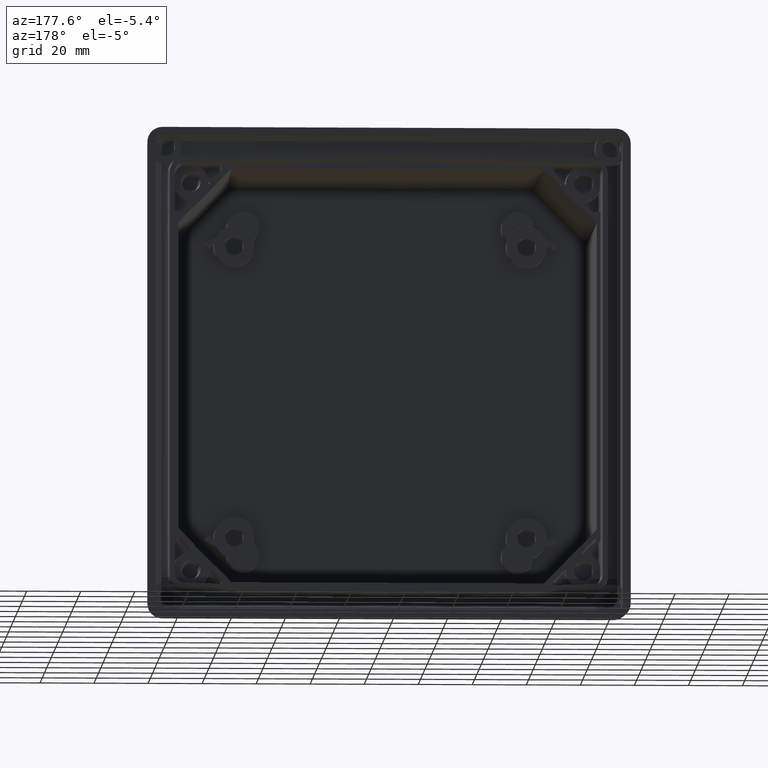
[diagram: clean part render]
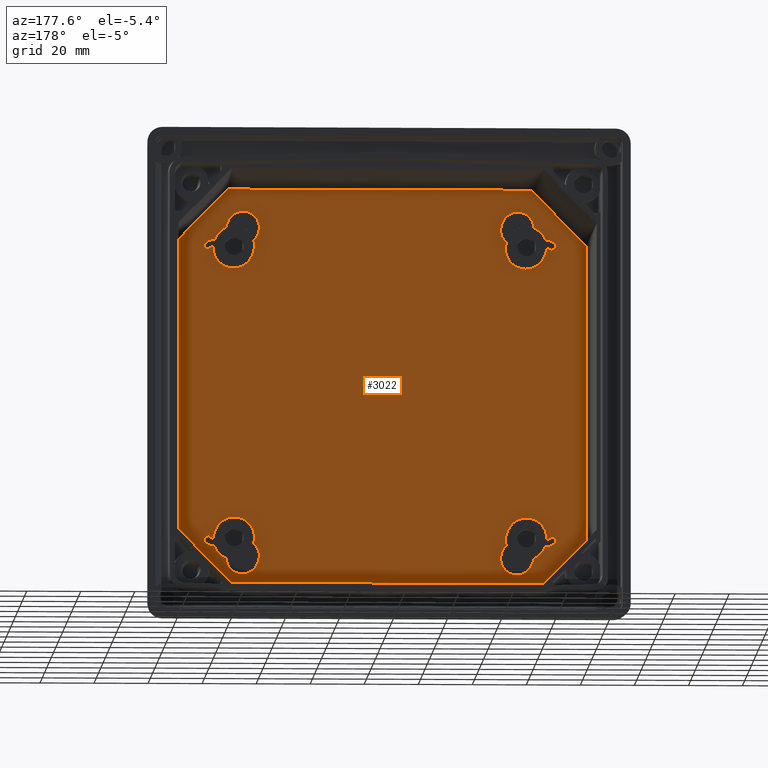
[diagram: same view with one face highlighted and labeled with its STEP entity id]
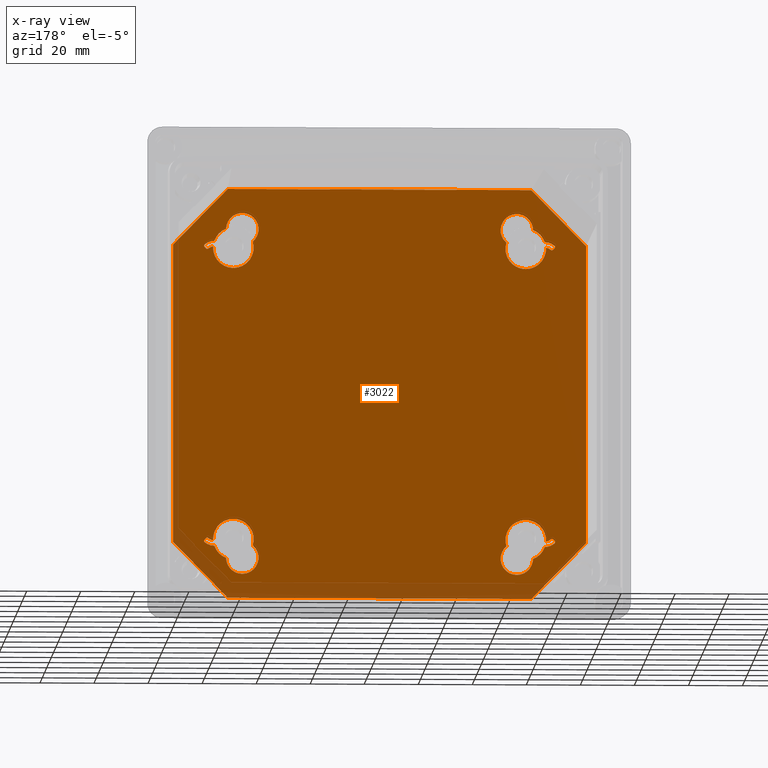
[diagram: x-ray of the same camera — body ghosted, the highlighted face saturated]
A machine part, auxiliary view. The second image highlights one B-rep face of the part: STEP entity #3022.
The next image is the same camera in x-ray: the body ghosted, the highlighted face saturated — about 5% of this face is hidden behind the body in this view.
In plain terms, the highlighted planar face has unit normal (0, -1, 0).
Its self-contained STEP definition (entity closure, byte-faithful):
#47 = VERTEX_POINT ( 'NONE', #10734 ) ;
#62 = DIRECTION ( 'NONE',  ( 0.0000000000000000000, 0.0000000000000000000, -1.000000000000000000 ) ) ;
#63 = CIRCLE ( 'NONE', #6000, 0.5000000000000073300 ) ;
#78 = VECTOR ( 'NONE', #9290, 1000.000000000000000 ) ;
#102 = EDGE_CURVE ( 'NONE', #2716, #3786, #10389, .T. ) ;
#212 = VERTEX_POINT ( 'NONE', #10812 ) ;
#215 = DIRECTION ( 'NONE',  ( 0.0000000000000000000, 0.0000000000000000000, -1.000000000000000000 ) ) ;
#251 = CARTESIAN_POINT ( 'NONE',  ( 50.79999999999999700, -84.49999999999998600, -61.00000000000000000 ) ) ;
#265 = AXIS2_PLACEMENT_3D ( 'NONE', #7161, #4368, #2992 ) ;
#306 = DIRECTION ( 'NONE',  ( -9.251858538542954100E-016, 0.0000000000000000000, -1.000000000000000000 ) ) ;
#325 = AXIS2_PLACEMENT_3D ( 'NONE', #13296, #11889, #10515 ) ;
#343 = CARTESIAN_POINT ( 'NONE',  ( 76.40815507603198900, -84.49999999999998600, -55.20772970923922400 ) ) ;
#458 = EDGE_CURVE ( 'NONE', #9845, #519, #7269, .T. ) ;
#517 = CARTESIAN_POINT ( 'NONE',  ( 63.77087436071639100, -84.49999999999998600, 53.62367472756140100 ) ) ;
#519 = VERTEX_POINT ( 'NONE', #2381 ) ;
#559 = DIRECTION ( 'NONE',  ( -0.7152683152838507100, 0.0000000000000000000, 0.6988499389361080300 ) ) ;
#560 = ORIENTED_EDGE ( 'NONE', *, *, #13187, .T. ) ;
#581 = VECTOR ( 'NONE', #9302, 1000.000000000000000 ) ;
#622 = DIRECTION ( 'NONE',  ( 0.0000000000000000000, -0.0000000000000000000, -1.000000000000000000 ) ) ;
#740 = AXIS2_PLACEMENT_3D ( 'NONE', #4469, #3093, #1694 ) ;
#741 = EDGE_CURVE ( 'NONE', #6270, #12889, #3686, .T. ) ;
#748 = VERTEX_POINT ( 'NONE', #1981 ) ;
#809 = EDGE_CURVE ( 'NONE', #5077, #3075, #3115, .T. ) ;
#817 = CARTESIAN_POINT ( 'NONE',  ( 63.77087436071639100, -84.49999999999998600, 54.12367472756140100 ) ) ;
#819 = CARTESIAN_POINT ( 'NONE',  ( 56.16765611959033300, -84.49999999999998600, -75.92675584495219700 ) ) ;
#909 = DIRECTION ( 'NONE',  ( -0.6988499389361077000, 0.0000000000000000000, 0.7152683152838510400 ) ) ;
#912 = ORIENTED_EDGE ( 'NONE', *, *, #5426, .F. ) ;
#982 = DIRECTION ( 'NONE',  ( 0.0000000000000000000, 0.0000000000000000000, -1.000000000000000000 ) ) ;
#1011 = CARTESIAN_POINT ( 'NONE',  ( 54.10000000000001600, -84.49999999999998600, -54.09999999999998700 ) ) ;
#1150 = ORIENTED_EDGE ( 'NONE', *, *, #11605, .F. ) ;
#1191 = AXIS2_PLACEMENT_3D ( 'NONE', #9619, #8241, #6839 ) ;
#1194 = DIRECTION ( 'NONE',  ( 0.0000000000000000000, 0.0000000000000000000, 1.000000000000000000 ) ) ;
#1233 = CIRCLE ( 'NONE', #13057, 3.999999999999996400 ) ;
#1339 = DIRECTION ( 'NONE',  ( 0.0000000000000000000, 1.000000000000000000, 0.0000000000000000000 ) ) ;
#1345 = ORIENTED_EDGE ( 'NONE', *, *, #12081, .T. ) ;
#1369 = CIRCLE ( 'NONE', #12923, 0.5000000000000004400 ) ;
#1437 = DIRECTION ( 'NONE',  ( -0.0000000000000000000, 1.000000000000000000, -0.0000000000000000000 ) ) ;
#1455 = AXIS2_PLACEMENT_3D ( 'NONE', #3102, #1699, #306 ) ;
#1502 = VERTEX_POINT ( 'NONE', #12107 ) ;
#1534 = CIRCLE ( 'NONE', #7531, 7.500000000000013300 ) ;
#1587 = ORIENTED_EDGE ( 'NONE', *, *, #13308, .T. ) ;
#1600 = DIRECTION ( 'NONE',  ( -0.0000000000000000000, 1.000000000000000000, -0.0000000000000000000 ) ) ;
#1613 = VERTEX_POINT ( 'NONE', #3851 ) ;
#1657 = DIRECTION ( 'NONE',  ( 0.0000000000000000000, 0.0000000000000000000, 1.000000000000000000 ) ) ;
#1694 = DIRECTION ( 'NONE',  ( 0.0000000000000000000, 0.0000000000000000000, -1.000000000000000000 ) ) ;
#1699 = DIRECTION ( 'NONE',  ( -0.0000000000000000000, 1.000000000000000000, -0.0000000000000000000 ) ) ;
#1704 = EDGE_CURVE ( 'NONE', #9067, #6270, #2200, .T. ) ;
#1733 = AXIS2_PLACEMENT_3D ( 'NONE', #3558, #10198, #8793 ) ;
#1741 = LINE ( 'NONE', #343, #5977 ) ;
#1795 = EDGE_CURVE ( 'NONE', #5226, #2406, #63, .T. ) ;
#1803 = AXIS2_PLACEMENT_3D ( 'NONE', #3410, #2031, #622 ) ;
#1808 = ORIENTED_EDGE ( 'NONE', *, *, #9238, .T. ) ;
#1825 = CARTESIAN_POINT ( 'NONE',  ( 46.95848369606154900, -84.49999999999998600, -56.39101394159462200 ) ) ;
#1849 = CARTESIAN_POINT ( 'NONE',  ( 76.40616714469128100, -84.49999999999998600, -55.20976434388931200 ) ) ;
#1954 = AXIS2_PLACEMENT_3D ( 'NONE', #251, #8281, #6878 ) ;
#1971 = CARTESIAN_POINT ( 'NONE',  ( -64.12029933018443700, -84.49999999999998600, 53.76604056991948300 ) ) ;
#1973 = DIRECTION ( 'NONE',  ( 0.0000000000000000000, 0.0000000000000000000, -1.000000000000000000 ) ) ;
#1981 = CARTESIAN_POINT ( 'NONE',  ( 56.16471657839286300, -84.49999999999998600, 75.92675584495218300 ) ) ;
#2016 = ORIENTED_EDGE ( 'NONE', *, *, #11937, .T. ) ;
#2031 = DIRECTION ( 'NONE',  ( 0.0000000000000000000, -1.000000000000000000, 0.0000000000000000000 ) ) ;
#2083 = EDGE_LOOP ( 'NONE', ( #10978, #1808, #1587, #8238, #2910, #9764, #9655, #5403 ) ) ;
#2091 = CARTESIAN_POINT ( 'NONE',  ( -56.16471657839283400, -84.49999999999998600, 75.92675584495219700 ) ) ;
#2115 = ORIENTED_EDGE ( 'NONE', *, *, #10953, .T. ) ;
#2147 = CARTESIAN_POINT ( 'NONE',  ( 61.15823028863208300, -84.49999999999998600, 56.63601758523807900 ) ) ;
#2200 = LINE ( 'NONE', #819, #9749 ) ;
#2288 = CARTESIAN_POINT ( 'NONE',  ( -56.16266228020645500, -84.49999999999998600, -75.92885840563222600 ) ) ;
#2305 = CARTESIAN_POINT ( 'NONE',  ( -46.95848369606150600, -84.49999999999998600, 56.39101394159465000 ) ) ;
#2359 = DIRECTION ( 'NONE',  ( 0.0000000000000000000, 1.000000000000000000, 0.0000000000000000000 ) ) ;
#2381 = CARTESIAN_POINT ( 'NONE',  ( 61.58427589301216900, -84.49999999999998600, -54.58540123328757700 ) ) ;
#2391 = VERTEX_POINT ( 'NONE', #11034 ) ;
#2406 = VERTEX_POINT ( 'NONE', #12429 ) ;
#2431 = CIRCLE ( 'NONE', #1191, 3.999999999999996400 ) ;
#2489 = ORIENTED_EDGE ( 'NONE', *, *, #11309, .F. ) ;
#2492 = EDGE_CURVE ( 'NONE', #9063, #5077, #7426, .T. ) ;
#2518 = CARTESIAN_POINT ( 'NONE',  ( -60.92152217993155700, -84.49999999999998600, -50.64068863085405100 ) ) ;
#2533 = DIRECTION ( 'NONE',  ( 0.7152683152838507100, 0.0000000000000000000, -0.6988499389361080300 ) ) ;
#2552 = DIRECTION ( 'NONE',  ( 0.0000000000000000000, 0.0000000000000000000, -1.000000000000000000 ) ) ;
#2584 = DIRECTION ( 'NONE',  ( -0.0000000000000000000, -1.000000000000000000, -0.0000000000000000000 ) ) ;
#2601 = VERTEX_POINT ( 'NONE', #6696 ) ;
#2619 = EDGE_CURVE ( 'NONE', #3615, #3391, #8484, .T. ) ;
#2637 = ORIENTED_EDGE ( 'NONE', *, *, #8834, .F. ) ;
#2647 = CARTESIAN_POINT ( 'NONE',  ( -64.83920808942838200, -84.49999999999998600, -54.46844738951820400 ) ) ;
#2716 = VERTEX_POINT ( 'NONE', #9958 ) ;
#2733 = CARTESIAN_POINT ( 'NONE',  ( -60.92152217993155700, -84.49999999999998600, 50.64068863085405100 ) ) ;
#2831 = CARTESIAN_POINT ( 'NONE',  ( 54.10000000000001600, -84.49999999999998600, -54.09999999999998700 ) ) ;
#2854 = CARTESIAN_POINT ( 'NONE',  ( -76.40616714469119600, -84.49999999999998600, -55.20976434388941100 ) ) ;
#2910 = ORIENTED_EDGE ( 'NONE', *, *, #7540, .T. ) ;
#2992 = DIRECTION ( 'NONE',  ( 0.0000000000000000000, 0.0000000000000000000, -1.000000000000000000 ) ) ;
#3009 = CARTESIAN_POINT ( 'NONE',  ( -54.09999999999998700, -84.49999999999998600, -54.10000000000000100 ) ) ;
#3022 = ADVANCED_FACE ( 'NONE', ( #13270, #3202, #3544, #4253, #4595 ), #4801, .F. ) ;
#3041 = EDGE_CURVE ( 'NONE', #5493, #10763, #7493, .T. ) ;
#3062 = DIRECTION ( 'NONE',  ( 0.0000000000000000000, 1.000000000000000000, 0.0000000000000000000 ) ) ;
#3075 = VERTEX_POINT ( 'NONE', #10760 ) ;
#3093 = DIRECTION ( 'NONE',  ( -0.0000000000000000000, 1.000000000000000000, -0.0000000000000000000 ) ) ;
#3102 = CARTESIAN_POINT ( 'NONE',  ( -54.09999999999998700, -84.49999999999998600, 54.10000000000000100 ) ) ;
#3115 = CIRCLE ( 'NONE', #11999, 0.5000000000000004400 ) ;
#3118 = DIRECTION ( 'NONE',  ( 0.0000000000000000000, 0.0000000000000000000, -1.000000000000000000 ) ) ;
#3140 = ORIENTED_EDGE ( 'NONE', *, *, #2492, .T. ) ;
#3202 = FACE_BOUND ( 'NONE', #11217, .T. ) ;
#3254 = EDGE_LOOP ( 'NONE', ( #8721, #6759, #2489, #2016, #13225, #912, #11823, #1345, #4926, #9014 ) ) ;
#3351 = LINE ( 'NONE', #1971, #13144 ) ;
#3354 = DIRECTION ( 'NONE',  ( -0.0000000000000000000, -1.000000000000000000, -0.0000000000000000000 ) ) ;
#3377 = ORIENTED_EDGE ( 'NONE', *, *, #2619, .T. ) ;
#3387 = CARTESIAN_POINT ( 'NONE',  ( 64.83920808942838200, -84.49999999999998600, -54.46844738951819700 ) ) ;
#3391 = VERTEX_POINT ( 'NONE', #13380 ) ;
#3410 = CARTESIAN_POINT ( 'NONE',  ( -130.3583993162143900, -84.49999999999998600, -2.775557561562891400E-014 ) ) ;
#3438 = ORIENTED_EDGE ( 'NONE', *, *, #4852, .F. ) ;
#3514 = VERTEX_POINT ( 'NONE', #13459 ) ;
#3517 = EDGE_CURVE ( 'NONE', #6258, #2601, #7523, .T. ) ;
#3544 = FACE_OUTER_BOUND ( 'NONE', #2083, .T. ) ;
#3558 = CARTESIAN_POINT ( 'NONE',  ( 54.10000000000001600, -84.49999999999998600, 54.09999999999998700 ) ) ;
#3615 = VERTEX_POINT ( 'NONE', #9368 ) ;
#3630 = ORIENTED_EDGE ( 'NONE', *, *, #9964, .T. ) ;
#3661 = EDGE_CURVE ( 'NONE', #2406, #11258, #4401, .T. ) ;
#3686 = LINE ( 'NONE', #2288, #5362 ) ;
#3726 = VERTEX_POINT ( 'NONE', #3963 ) ;
#3759 = CARTESIAN_POINT ( 'NONE',  ( -64.48978311996030800, -84.49999999999998600, 54.82608154716012900 ) ) ;
#3780 = AXIS2_PLACEMENT_3D ( 'NONE', #9270, #7863, #6481 ) ;
#3786 = VERTEX_POINT ( 'NONE', #7628 ) ;
#3804 = CARTESIAN_POINT ( 'NONE',  ( 54.10000000000001600, -84.49999999999998600, -46.59999999999998700 ) ) ;
#3851 = CARTESIAN_POINT ( 'NONE',  ( -54.09999999999998700, -84.49999999999998600, -46.59999999999998700 ) ) ;
#3894 = VERTEX_POINT ( 'NONE', #5337 ) ;
#3934 = CARTESIAN_POINT ( 'NONE',  ( 64.12029933018443700, -84.49999999999998600, -53.76604056991948300 ) ) ;
#3957 = DIRECTION ( 'NONE',  ( -0.0000000000000000000, 1.000000000000000000, -0.0000000000000000000 ) ) ;
#3963 = CARTESIAN_POINT ( 'NONE',  ( 64.12029933018445100, -84.49999999999998600, -53.76604056991949000 ) ) ;
#3990 = CARTESIAN_POINT ( 'NONE',  ( -50.79999999999999700, -84.49999999999998600, -61.00000000000000000 ) ) ;
#4023 = CARTESIAN_POINT ( 'NONE',  ( 76.40616714469128100, -84.49999999999998600, 55.20976434388931200 ) ) ;
#4060 = ORIENTED_EDGE ( 'NONE', *, *, #13316, .F. ) ;
#4112 = DIRECTION ( 'NONE',  ( 0.0000000000000000000, 0.0000000000000000000, -1.000000000000000000 ) ) ;
#4120 = CARTESIAN_POINT ( 'NONE',  ( -63.45427967396251000, -84.49999999999998600, 53.73667627237169600 ) ) ;
#4162 = VERTEX_POINT ( 'NONE', #4023 ) ;
#4222 = DIRECTION ( 'NONE',  ( 0.0000000000000000000, 0.0000000000000000000, 1.000000000000000000 ) ) ;
#4234 = DIRECTION ( 'NONE',  ( 0.6988499389361071400, 0.0000000000000000000, -0.7152683152838516000 ) ) ;
#4253 = FACE_BOUND ( 'NONE', #6737, .T. ) ;
#4368 = DIRECTION ( 'NONE',  ( -0.0000000000000000000, 1.000000000000000000, 0.0000000000000000000 ) ) ;
#4392 = AXIS2_PLACEMENT_3D ( 'NONE', #817, #12991, #11597 ) ;
#4401 = CIRCLE ( 'NONE', #6533, 6.000000000000005300 ) ;
#4439 = CARTESIAN_POINT ( 'NONE',  ( 64.48978311996030800, -84.49999999999998600, -54.82608154716012900 ) ) ;
#4457 = CIRCLE ( 'NONE', #4746, 7.500000000000013300 ) ;
#4469 = CARTESIAN_POINT ( 'NONE',  ( 54.10000000000001600, -84.49999999999998600, 54.09999999999998700 ) ) ;
#4494 = DIRECTION ( 'NONE',  ( 0.0000000000000000000, 1.000000000000000000, -0.0000000000000000000 ) ) ;
#4561 = CIRCLE ( 'NONE', #1733, 7.500000000000000000 ) ;
#4592 = CIRCLE ( 'NONE', #6904, 6.000000000000005300 ) ;
#4595 = FACE_BOUND ( 'NONE', #7274, .T. ) ;
#4602 = ORIENTED_EDGE ( 'NONE', *, *, #10315, .F. ) ;
#4738 = CARTESIAN_POINT ( 'NONE',  ( 64.48978311996030800, -84.49999999999998600, 54.82608154716012900 ) ) ;
#4746 = AXIS2_PLACEMENT_3D ( 'NONE', #10869, #9490, #8104 ) ;
#4770 = ORIENTED_EDGE ( 'NONE', *, *, #8481, .F. ) ;
#4783 = EDGE_CURVE ( 'NONE', #1613, #6740, #5528, .T. ) ;
#4801 = PLANE ( 'NONE',  #1803 ) ;
#4834 = CIRCLE ( 'NONE', #4392, 0.5000000000000004400 ) ;
#4852 = EDGE_CURVE ( 'NONE', #8847, #11495, #10768, .T. ) ;
#4926 = ORIENTED_EDGE ( 'NONE', *, *, #3517, .T. ) ;
#4936 = ORIENTED_EDGE ( 'NONE', *, *, #9825, .F. ) ;
#5070 = EDGE_CURVE ( 'NONE', #7757, #6099, #12065, .T. ) ;
#5077 = VERTEX_POINT ( 'NONE', #6516 ) ;
#5165 = CARTESIAN_POINT ( 'NONE',  ( -63.77087436071639100, -84.49999999999998600, -54.12367472756140100 ) ) ;
#5172 = CARTESIAN_POINT ( 'NONE',  ( 63.45427967396251000, -84.49999999999998600, -53.73667627237169600 ) ) ;
#5180 = ORIENTED_EDGE ( 'NONE', *, *, #458, .F. ) ;
#5226 = VERTEX_POINT ( 'NONE', #7338 ) ;
#5322 = LINE ( 'NONE', #3934, #6166 ) ;
#5326 = VECTOR ( 'NONE', #10373, 1000.000000000000000 ) ;
#5337 = CARTESIAN_POINT ( 'NONE',  ( 64.81417047814474600, -84.49999999999998600, -55.20657181227887400 ) ) ;
#5339 = CARTESIAN_POINT ( 'NONE',  ( 54.10000000000001600, -84.49999999999998600, 54.09999999999998700 ) ) ;
#5362 = VECTOR ( 'NONE', #909, 1000.000000000000000 ) ;
#5390 = EDGE_CURVE ( 'NONE', #10044, #2391, #11855, .T. ) ;
#5403 = ORIENTED_EDGE ( 'NONE', *, *, #5636, .T. ) ;
#5419 = CARTESIAN_POINT ( 'NONE',  ( -61.58427589301215500, -84.49999999999998600, 54.58540123328757700 ) ) ;
#5426 = EDGE_CURVE ( 'NONE', #212, #5493, #4561, .T. ) ;
#5486 = DIRECTION ( 'NONE',  ( -0.0000000000000000000, 1.000000000000000000, -0.0000000000000000000 ) ) ;
#5493 = VERTEX_POINT ( 'NONE', #6742 ) ;
#5515 = AXIS2_PLACEMENT_3D ( 'NONE', #5339, #3957, #2552 ) ;
#5528 = CIRCLE ( 'NONE', #12582, 7.500000000000013300 ) ;
#5576 = AXIS2_PLACEMENT_3D ( 'NONE', #10665, #9289, #7884 ) ;
#5587 = VECTOR ( 'NONE', #8528, 1000.000000000000100 ) ;
#5597 = DIRECTION ( 'NONE',  ( 0.0000000000000000000, 1.000000000000000000, 0.0000000000000000000 ) ) ;
#5605 = CARTESIAN_POINT ( 'NONE',  ( 56.16266228020649000, -84.49999999999998600, 75.92885840563221200 ) ) ;
#5636 = EDGE_CURVE ( 'NONE', #12889, #7757, #12048, .T. ) ;
#5661 = AXIS2_PLACEMENT_3D ( 'NONE', #8969, #7579, #6203 ) ;
#5754 = CIRCLE ( 'NONE', #11211, 6.000000000000005300 ) ;
#5915 = VERTEX_POINT ( 'NONE', #5419 ) ;
#5977 = VECTOR ( 'NONE', #12531, 1000.000000000000000 ) ;
#5988 = EDGE_CURVE ( 'NONE', #3514, #3391, #12645, .T. ) ;
#6000 = AXIS2_PLACEMENT_3D ( 'NONE', #4738, #3354, #1973 ) ;
#6037 = EDGE_CURVE ( 'NONE', #4162, #6182, #10023, .T. ) ;
#6099 = VERTEX_POINT ( 'NONE', #2091 ) ;
#6166 = VECTOR ( 'NONE', #2533, 1000.000000000000100 ) ;
#6182 = VERTEX_POINT ( 'NONE', #1849 ) ;
#6203 = DIRECTION ( 'NONE',  ( 0.0000000000000000000, 0.0000000000000000000, 1.000000000000000000 ) ) ;
#6257 = AXIS2_PLACEMENT_3D ( 'NONE', #3759, #2359, #982 ) ;
#6258 = VERTEX_POINT ( 'NONE', #517 ) ;
#6270 = VERTEX_POINT ( 'NONE', #12701 ) ;
#6315 = EDGE_CURVE ( 'NONE', #12295, #3726, #6410, .T. ) ;
#6341 = DIRECTION ( 'NONE',  ( 0.0000000000000000000, 0.0000000000000000000, 1.000000000000000000 ) ) ;
#6410 = CIRCLE ( 'NONE', #265, 0.5000000000000004400 ) ;
#6452 = VERTEX_POINT ( 'NONE', #3387 ) ;
#6470 = DIRECTION ( 'NONE',  ( 0.0000000000000000000, 0.0000000000000000000, -1.000000000000000000 ) ) ;
#6481 = DIRECTION ( 'NONE',  ( 0.0000000000000000000, 0.0000000000000000000, -1.000000000000000000 ) ) ;
#6516 = CARTESIAN_POINT ( 'NONE',  ( -63.45427967396251000, -84.49999999999998600, -53.73667627237169600 ) ) ;
#6533 = AXIS2_PLACEMENT_3D ( 'NONE', #10505, #9119, #7718 ) ;
#6539 = ORIENTED_EDGE ( 'NONE', *, *, #12160, .F. ) ;
#6549 = EDGE_CURVE ( 'NONE', #3514, #47, #12677, .T. ) ;
#6563 = CARTESIAN_POINT ( 'NONE',  ( -64.12029933018443700, -84.49999999999998600, 53.76604056991947500 ) ) ;
#6696 = CARTESIAN_POINT ( 'NONE',  ( 64.12029933018443700, -84.49999999999998600, 53.76604056991947500 ) ) ;
#6737 = EDGE_LOOP ( 'NONE', ( #1150, #12197, #9627, #13389, #2637, #5180, #4060, #10349, #11356, #13488 ) ) ;
#6740 = VERTEX_POINT ( 'NONE', #6925 ) ;
#6742 = CARTESIAN_POINT ( 'NONE',  ( 54.10000000000001600, -84.49999999999998600, 46.59999999999998700 ) ) ;
#6759 = ORIENTED_EDGE ( 'NONE', *, *, #3661, .T. ) ;
#6828 = DIRECTION ( 'NONE',  ( 0.0000000000000000000, 0.0000000000000000000, 1.000000000000000000 ) ) ;
#6839 = DIRECTION ( 'NONE',  ( 0.0000000000000000000, 0.0000000000000000000, -1.000000000000000000 ) ) ;
#6878 = DIRECTION ( 'NONE',  ( 0.0000000000000000000, 0.0000000000000000000, 1.000000000000000000 ) ) ;
#6883 = CARTESIAN_POINT ( 'NONE',  ( -54.09999999999998700, -84.49999999999998600, -54.10000000000000100 ) ) ;
#6888 = CIRCLE ( 'NONE', #1954, 6.000000000000005300 ) ;
#6904 = AXIS2_PLACEMENT_3D ( 'NONE', #2733, #1339, #13537 ) ;
#6925 = CARTESIAN_POINT ( 'NONE',  ( -46.95848369606150600, -84.49999999999998600, -56.39101394159465000 ) ) ;
#6955 = AXIS2_PLACEMENT_3D ( 'NONE', #2518, #13320, #11920 ) ;
#6975 = CARTESIAN_POINT ( 'NONE',  ( 63.45427967396251000, -84.49999999999998600, 53.73667627237169600 ) ) ;
#6987 = EDGE_CURVE ( 'NONE', #212, #7547, #1233, .T. ) ;
#6992 = ORIENTED_EDGE ( 'NONE', *, *, #7912, .F. ) ;
#7001 = CARTESIAN_POINT ( 'NONE',  ( -63.77087436071639100, -84.49999999999998600, 54.12367472756140100 ) ) ;
#7011 = LINE ( 'NONE', #5605, #7389 ) ;
#7065 = DIRECTION ( 'NONE',  ( 0.0000000000000000000, 0.0000000000000000000, -1.000000000000000000 ) ) ;
#7161 = CARTESIAN_POINT ( 'NONE',  ( 63.77087436071639100, -84.49999999999998600, -54.12367472756140100 ) ) ;
#7255 = DIRECTION ( 'NONE',  ( 0.0000000000000000000, 0.0000000000000000000, -1.000000000000000000 ) ) ;
#7269 = CIRCLE ( 'NONE', #3780, 7.500000000000000000 ) ;
#7274 = EDGE_LOOP ( 'NONE', ( #4936, #10193, #6539, #10533, #4770, #7762, #6992, #13149, #8787, #3438 ) ) ;
#7292 = CARTESIAN_POINT ( 'NONE',  ( -60.92152217993155700, -84.49999999999998600, -50.64068863085405100 ) ) ;
#7338 = CARTESIAN_POINT ( 'NONE',  ( 64.83920808942839600, -84.49999999999998600, 54.46844738951822500 ) ) ;
#7375 = CARTESIAN_POINT ( 'NONE',  ( 50.79999999999999700, -84.49999999999998600, -67.00000000000000000 ) ) ;
#7389 = VECTOR ( 'NONE', #4234, 1000.000000000000000 ) ;
#7426 = CIRCLE ( 'NONE', #7695, 3.999999999999996400 ) ;
#7485 = CARTESIAN_POINT ( 'NONE',  ( 56.16471657839282700, -84.49999999999998600, -75.92675584495219700 ) ) ;
#7493 = CIRCLE ( 'NONE', #740, 7.500000000000000000 ) ;
#7511 = DIRECTION ( 'NONE',  ( 0.0000000000000000000, 0.0000000000000000000, -1.000000000000000000 ) ) ;
#7523 = CIRCLE ( 'NONE', #12034, 0.5000000000000004400 ) ;
#7531 = AXIS2_PLACEMENT_3D ( 'NONE', #6883, #5486, #4112 ) ;
#7540 = EDGE_CURVE ( 'NONE', #6182, #9067, #1741, .T. ) ;
#7547 = VERTEX_POINT ( 'NONE', #6975 ) ;
#7579 = DIRECTION ( 'NONE',  ( 0.0000000000000000000, 1.000000000000000000, 0.0000000000000000000 ) ) ;
#7628 = CARTESIAN_POINT ( 'NONE',  ( 56.79920861163077500, -84.49999999999998600, -61.09744759686688600 ) ) ;
#7651 = VERTEX_POINT ( 'NONE', #1825 ) ;
#7670 = ORIENTED_EDGE ( 'NONE', *, *, #6549, .T. ) ;
#7695 = AXIS2_PLACEMENT_3D ( 'NONE', #7292, #4494, #3118 ) ;
#7718 = DIRECTION ( 'NONE',  ( 0.0000000000000000000, 0.0000000000000000000, 1.000000000000000000 ) ) ;
#7723 = DIRECTION ( 'NONE',  ( -0.0000000000000000000, -1.000000000000000000, -0.0000000000000000000 ) ) ;
#7731 = AXIS2_PLACEMENT_3D ( 'NONE', #2831, #1437, #62 ) ;
#7747 = CIRCLE ( 'NONE', #13205, 0.5000000000000073300 ) ;
#7757 = VERTEX_POINT ( 'NONE', #11614 ) ;
#7762 = ORIENTED_EDGE ( 'NONE', *, *, #9107, .F. ) ;
#7855 = DIRECTION ( 'NONE',  ( -0.0000000000000000000, -1.000000000000000000, -0.0000000000000000000 ) ) ;
#7861 = AXIS2_PLACEMENT_3D ( 'NONE', #3009, #1600, #215 ) ;
#7863 = DIRECTION ( 'NONE',  ( -0.0000000000000000000, 1.000000000000000000, -0.0000000000000000000 ) ) ;
#7884 = DIRECTION ( 'NONE',  ( 0.0000000000000000000, 0.0000000000000000000, 1.000000000000000000 ) ) ;
#7898 = CARTESIAN_POINT ( 'NONE',  ( -61.15823028863208300, -84.49999999999998600, 56.63601758523807900 ) ) ;
#7912 = EDGE_CURVE ( 'NONE', #2391, #5915, #4457, .T. ) ;
#7913 = EDGE_CURVE ( 'NONE', #3726, #6452, #5322, .T. ) ;
#7971 = AXIS2_PLACEMENT_3D ( 'NONE', #3990, #2584, #1194 ) ;
#8087 = EDGE_CURVE ( 'NONE', #12700, #13074, #9702, .T. ) ;
#8104 = DIRECTION ( 'NONE',  ( 0.0000000000000000000, 0.0000000000000000000, -1.000000000000000000 ) ) ;
#8231 = DIRECTION ( 'NONE',  ( -0.0000000000000000000, 1.000000000000000000, -0.0000000000000000000 ) ) ;
#8238 = ORIENTED_EDGE ( 'NONE', *, *, #6037, .T. ) ;
#8241 = DIRECTION ( 'NONE',  ( 0.0000000000000000000, -1.000000000000000000, -0.0000000000000000000 ) ) ;
#8281 = DIRECTION ( 'NONE',  ( 0.0000000000000000000, 1.000000000000000000, 0.0000000000000000000 ) ) ;
#8416 = AXIS2_PLACEMENT_3D ( 'NONE', #13181, #10416, #9018 ) ;
#8447 = DIRECTION ( 'NONE',  ( 0.0000000000000000000, 1.000000000000000000, 0.0000000000000000000 ) ) ;
#8481 = EDGE_CURVE ( 'NONE', #11513, #13401, #1369, .T. ) ;
#8484 = CIRCLE ( 'NONE', #6955, 6.000000000000005300 ) ;
#8528 = DIRECTION ( 'NONE',  ( 0.7152683152838507100, 0.0000000000000000000, 0.6988499389361080300 ) ) ;
#8627 = CARTESIAN_POINT ( 'NONE',  ( 76.40616714469128100, -84.49999999999998600, 55.21260891928377400 ) ) ;
#8654 = VECTOR ( 'NONE', #7255, 1000.000000000000000 ) ;
#8721 = ORIENTED_EDGE ( 'NONE', *, *, #1795, .T. ) ;
#8787 = ORIENTED_EDGE ( 'NONE', *, *, #11274, .F. ) ;
#8793 = DIRECTION ( 'NONE',  ( 0.0000000000000000000, 0.0000000000000000000, -1.000000000000000000 ) ) ;
#8811 = CIRCLE ( 'NONE', #12594, 0.5000000000000073300 ) ;
#8834 = EDGE_CURVE ( 'NONE', #519, #12295, #2431, .T. ) ;
#8847 = VERTEX_POINT ( 'NONE', #7898 ) ;
#8869 = CARTESIAN_POINT ( 'NONE',  ( -61.58427589301215500, -84.49999999999998600, -54.58540123328757700 ) ) ;
#8893 = DIRECTION ( 'NONE',  ( -0.0000000000000000000, 1.000000000000000000, -0.0000000000000000000 ) ) ;
#8945 = CIRCLE ( 'NONE', #8416, 6.000000000000005300 ) ;
#8969 = CARTESIAN_POINT ( 'NONE',  ( 50.79999999999999700, -84.49999999999998600, -61.00000000000000000 ) ) ;
#9014 = ORIENTED_EDGE ( 'NONE', *, *, #9999, .T. ) ;
#9018 = DIRECTION ( 'NONE',  ( 0.0000000000000000000, 0.0000000000000000000, -1.000000000000000000 ) ) ;
#9063 = VERTEX_POINT ( 'NONE', #8869 ) ;
#9067 = VERTEX_POINT ( 'NONE', #7485 ) ;
#9079 = CARTESIAN_POINT ( 'NONE',  ( 46.95848369606154900, -84.49999999999998600, 56.39101394159462200 ) ) ;
#9102 = VERTEX_POINT ( 'NONE', #2647 ) ;
#9107 = EDGE_CURVE ( 'NONE', #5915, #11513, #11849, .T. ) ;
#9119 = DIRECTION ( 'NONE',  ( -0.0000000000000000000, -1.000000000000000000, -0.0000000000000000000 ) ) ;
#9121 = CIRCLE ( 'NONE', #7731, 7.500000000000000000 ) ;
#9127 = CARTESIAN_POINT ( 'NONE',  ( -50.79999999999999700, -84.49999999999998600, -61.00000000000000000 ) ) ;
#9238 = EDGE_CURVE ( 'NONE', #6099, #748, #13135, .T. ) ;
#9246 = EDGE_CURVE ( 'NONE', #10523, #7651, #10826, .T. ) ;
#9261 = CARTESIAN_POINT ( 'NONE',  ( 50.79999999999999700, -84.49999999999998600, 61.00000000000000000 ) ) ;
#9270 = CARTESIAN_POINT ( 'NONE',  ( 54.10000000000001600, -84.49999999999998600, -54.09999999999998700 ) ) ;
#9289 = DIRECTION ( 'NONE',  ( -0.0000000000000000000, -1.000000000000000000, 0.0000000000000000000 ) ) ;
#9290 = DIRECTION ( 'NONE',  ( -1.256758925130906600E-016, 0.0000000000000000000, 1.000000000000000000 ) ) ;
#9294 = DIRECTION ( 'NONE',  ( 0.0000000000000000000, 0.0000000000000000000, 1.000000000000000000 ) ) ;
#9302 = DIRECTION ( 'NONE',  ( 0.6988499389361073600, 0.0000000000000000000, 0.7152683152838513700 ) ) ;
#9368 = CARTESIAN_POINT ( 'NONE',  ( -64.81417047814474600, -84.49999999999998600, -55.20657181227887400 ) ) ;
#9490 = DIRECTION ( 'NONE',  ( -0.0000000000000000000, 1.000000000000000000, -0.0000000000000000000 ) ) ;
#9532 = ORIENTED_EDGE ( 'NONE', *, *, #4783, .F. ) ;
#9619 = CARTESIAN_POINT ( 'NONE',  ( 60.92152217993155700, -84.49999999999998600, -50.64068863085405100 ) ) ;
#9627 = ORIENTED_EDGE ( 'NONE', *, *, #7913, .F. ) ;
#9655 = ORIENTED_EDGE ( 'NONE', *, *, #741, .T. ) ;
#9666 = CARTESIAN_POINT ( 'NONE',  ( -56.79920861163077500, -84.49999999999998600, 61.09744759686690000 ) ) ;
#9702 = CIRCLE ( 'NONE', #6257, 0.5000000000000073300 ) ;
#9749 = VECTOR ( 'NONE', #12993, 1000.000000000000000 ) ;
#9764 = ORIENTED_EDGE ( 'NONE', *, *, #1704, .T. ) ;
#9785 = CARTESIAN_POINT ( 'NONE',  ( -64.81417047814474600, -84.49999999999998600, 55.20657181227887400 ) ) ;
#9825 = EDGE_CURVE ( 'NONE', #13074, #8847, #4592, .T. ) ;
#9833 = CARTESIAN_POINT ( 'NONE',  ( -50.79999999999999700, -84.49999999999998600, 61.00000000000000000 ) ) ;
#9845 = VERTEX_POINT ( 'NONE', #3804 ) ;
#9917 = CARTESIAN_POINT ( 'NONE',  ( 64.12029933018443700, -84.49999999999998600, 53.76604056991948300 ) ) ;
#9958 = CARTESIAN_POINT ( 'NONE',  ( 61.15823028863208300, -84.49999999999998600, -56.63601758523807900 ) ) ;
#9964 = EDGE_CURVE ( 'NONE', #9102, #3615, #7747, .T. ) ;
#9999 = EDGE_CURVE ( 'NONE', #2601, #5226, #11320, .T. ) ;
#10023 = LINE ( 'NONE', #8627, #8654 ) ;
#10044 = VERTEX_POINT ( 'NONE', #2305 ) ;
#10047 = CIRCLE ( 'NONE', #11646, 6.000000000000005300 ) ;
#10074 = EDGE_CURVE ( 'NONE', #6452, #3894, #8811, .T. ) ;
#10098 = VECTOR ( 'NONE', #10683, 1000.000000000000100 ) ;
#10165 = AXIS2_PLACEMENT_3D ( 'NONE', #7001, #5597, #4222 ) ;
#10193 = ORIENTED_EDGE ( 'NONE', *, *, #8087, .F. ) ;
#10198 = DIRECTION ( 'NONE',  ( -0.0000000000000000000, 1.000000000000000000, -0.0000000000000000000 ) ) ;
#10264 = DIRECTION ( 'NONE',  ( 0.0000000000000000000, 0.0000000000000000000, 1.000000000000000000 ) ) ;
#10299 = CARTESIAN_POINT ( 'NONE',  ( -54.09999999999998700, -84.49999999999998600, -54.10000000000000100 ) ) ;
#10308 = ORIENTED_EDGE ( 'NONE', *, *, #809, .T. ) ;
#10315 = EDGE_CURVE ( 'NONE', #9063, #1613, #1534, .T. ) ;
#10349 = ORIENTED_EDGE ( 'NONE', *, *, #9246, .F. ) ;
#10373 = DIRECTION ( 'NONE',  ( 1.000000000000000000, 0.0000000000000000000, -2.470779228933163800E-016 ) ) ;
#10389 = CIRCLE ( 'NONE', #12696, 7.500000000000000000 ) ;
#10398 = CARTESIAN_POINT ( 'NONE',  ( -64.83920808942838200, -84.49999999999998600, 54.46844738951819700 ) ) ;
#10416 = DIRECTION ( 'NONE',  ( -0.0000000000000000000, 1.000000000000000000, 0.0000000000000000000 ) ) ;
#10505 = CARTESIAN_POINT ( 'NONE',  ( 60.92152217993155700, -84.49999999999998600, 50.64068863085405100 ) ) ;
#10515 = DIRECTION ( 'NONE',  ( -9.251858538542954100E-016, 0.0000000000000000000, -1.000000000000000000 ) ) ;
#10523 = VERTEX_POINT ( 'NONE', #7375 ) ;
#10533 = ORIENTED_EDGE ( 'NONE', *, *, #10921, .F. ) ;
#10665 = CARTESIAN_POINT ( 'NONE',  ( -60.92152217993155700, -84.49999999999998600, 50.64068863085405100 ) ) ;
#10666 = CARTESIAN_POINT ( 'NONE',  ( -76.40616714469119600, -84.49999999999998600, -55.21260891928386600 ) ) ;
#10669 = DIRECTION ( 'NONE',  ( -0.0000000000000000000, -1.000000000000000000, -0.0000000000000000000 ) ) ;
#10678 = CARTESIAN_POINT ( 'NONE',  ( -76.40815507603191700, -84.49999999999998600, 55.20772970923931000 ) ) ;
#10683 = DIRECTION ( 'NONE',  ( -0.7152683152838507100, 0.0000000000000000000, -0.6988499389361080300 ) ) ;
#10734 = CARTESIAN_POINT ( 'NONE',  ( -50.79999999999999700, -84.49999999999998600, -67.00000000000000000 ) ) ;
#10760 = CARTESIAN_POINT ( 'NONE',  ( -64.12029933018443700, -84.49999999999998600, -53.76604056991947500 ) ) ;
#10763 = VERTEX_POINT ( 'NONE', #9079 ) ;
#10765 = DIRECTION ( 'NONE',  ( 0.0000000000000000000, 0.0000000000000000000, 1.000000000000000000 ) ) ;
#10768 = CIRCLE ( 'NONE', #1455, 7.500000000000013300 ) ;
#10812 = CARTESIAN_POINT ( 'NONE',  ( 61.58427589301216900, -84.49999999999998600, 54.58540123328757700 ) ) ;
#10826 = CIRCLE ( 'NONE', #5661, 6.000000000000005300 ) ;
#10869 = CARTESIAN_POINT ( 'NONE',  ( -54.09999999999998700, -84.49999999999998600, 54.10000000000000100 ) ) ;
#10921 = EDGE_CURVE ( 'NONE', #13401, #11568, #12022, .T. ) ;
#10953 = EDGE_CURVE ( 'NONE', #47, #6740, #5754, .T. ) ;
#10978 = ORIENTED_EDGE ( 'NONE', *, *, #5070, .T. ) ;
#10991 = CARTESIAN_POINT ( 'NONE',  ( 60.92152217993155700, -84.49999999999998600, 50.64068863085405100 ) ) ;
#11030 = CIRCLE ( 'NONE', #12080, 6.000000000000005300 ) ;
#11034 = CARTESIAN_POINT ( 'NONE',  ( -54.09999999999998700, -84.49999999999998600, 46.59999999999998700 ) ) ;
#11093 = ORIENTED_EDGE ( 'NONE', *, *, #5988, .F. ) ;
#11211 = AXIS2_PLACEMENT_3D ( 'NONE', #9127, #7723, #6341 ) ;
#11217 = EDGE_LOOP ( 'NONE', ( #3630, #3377, #11093, #7670, #2115, #9532, #4602, #3140, #10308, #560 ) ) ;
#11258 = VERTEX_POINT ( 'NONE', #2147 ) ;
#11274 = EDGE_CURVE ( 'NONE', #11495, #10044, #11030, .T. ) ;
#11309 = EDGE_CURVE ( 'NONE', #1502, #11258, #13124, .T. ) ;
#11320 = LINE ( 'NONE', #9917, #5587 ) ;
#11356 = ORIENTED_EDGE ( 'NONE', *, *, #11980, .F. ) ;
#11495 = VERTEX_POINT ( 'NONE', #9666 ) ;
#11513 = VERTEX_POINT ( 'NONE', #4120 ) ;
#11568 = VERTEX_POINT ( 'NONE', #6563 ) ;
#11597 = DIRECTION ( 'NONE',  ( 0.0000000000000000000, 0.0000000000000000000, 1.000000000000000000 ) ) ;
#11605 = EDGE_CURVE ( 'NONE', #3894, #2716, #8945, .T. ) ;
#11614 = CARTESIAN_POINT ( 'NONE',  ( -76.40616714469121000, -84.49999999999998600, 55.20976434388939700 ) ) ;
#11626 = DIRECTION ( 'NONE',  ( -0.0000000000000000000, -1.000000000000000000, -0.0000000000000000000 ) ) ;
#11644 = CARTESIAN_POINT ( 'NONE',  ( -63.77087436071639100, -84.49999999999998600, 53.62367472756140100 ) ) ;
#11646 = AXIS2_PLACEMENT_3D ( 'NONE', #9261, #7855, #6470 ) ;
#11736 = CARTESIAN_POINT ( 'NONE',  ( -56.16765611959034000, -84.49999999999998600, 75.92675584495219700 ) ) ;
#11767 = DIRECTION ( 'NONE',  ( 0.0000000000000000000, 0.0000000000000000000, -1.000000000000000000 ) ) ;
#11791 = DIRECTION ( 'NONE',  ( 1.850371707708594400E-015, 0.0000000000000000000, -1.000000000000000000 ) ) ;
#11823 = ORIENTED_EDGE ( 'NONE', *, *, #6987, .T. ) ;
#11849 = CIRCLE ( 'NONE', #5576, 3.999999999999996400 ) ;
#11855 = CIRCLE ( 'NONE', #325, 7.500000000000013300 ) ;
#11889 = DIRECTION ( 'NONE',  ( -0.0000000000000000000, 1.000000000000000000, -0.0000000000000000000 ) ) ;
#11920 = DIRECTION ( 'NONE',  ( 0.0000000000000000000, 0.0000000000000000000, -1.000000000000000000 ) ) ;
#11937 = EDGE_CURVE ( 'NONE', #1502, #10763, #10047, .T. ) ;
#11980 = EDGE_CURVE ( 'NONE', #3786, #10523, #6888, .T. ) ;
#11999 = AXIS2_PLACEMENT_3D ( 'NONE', #5165, #13168, #11767 ) ;
#12022 = CIRCLE ( 'NONE', #10165, 0.5000000000000004400 ) ;
#12034 = AXIS2_PLACEMENT_3D ( 'NONE', #12055, #10669, #9294 ) ;
#12048 = LINE ( 'NONE', #10666, #78 ) ;
#12055 = CARTESIAN_POINT ( 'NONE',  ( 63.77087436071639100, -84.49999999999998600, 54.12367472756140100 ) ) ;
#12065 = LINE ( 'NONE', #10678, #581 ) ;
#12071 = CARTESIAN_POINT ( 'NONE',  ( -64.12029933018443700, -84.49999999999998600, -53.76604056991948300 ) ) ;
#12080 = AXIS2_PLACEMENT_3D ( 'NONE', #9833, #8447, #7065 ) ;
#12081 = EDGE_CURVE ( 'NONE', #7547, #6258, #4834, .T. ) ;
#12107 = CARTESIAN_POINT ( 'NONE',  ( 56.79920861163077500, -84.49999999999998600, 61.09744759686688600 ) ) ;
#12160 = EDGE_CURVE ( 'NONE', #11568, #12700, #3351, .T. ) ;
#12163 = DIRECTION ( 'NONE',  ( 0.0000000000000000000, 1.000000000000000000, 0.0000000000000000000 ) ) ;
#12197 = ORIENTED_EDGE ( 'NONE', *, *, #10074, .F. ) ;
#12295 = VERTEX_POINT ( 'NONE', #5172 ) ;
#12429 = CARTESIAN_POINT ( 'NONE',  ( 64.81417047814474600, -84.49999999999998600, 55.20657181227887400 ) ) ;
#12531 = DIRECTION ( 'NONE',  ( -0.6988499389361072500, 0.0000000000000000000, -0.7152683152838514900 ) ) ;
#12582 = AXIS2_PLACEMENT_3D ( 'NONE', #10299, #8893, #7511 ) ;
#12594 = AXIS2_PLACEMENT_3D ( 'NONE', #4439, #3062, #1657 ) ;
#12645 = CIRCLE ( 'NONE', #7861, 7.500000000000013300 ) ;
#12677 = CIRCLE ( 'NONE', #7971, 6.000000000000005300 ) ;
#12696 = AXIS2_PLACEMENT_3D ( 'NONE', #1011, #13194, #11791 ) ;
#12700 = VERTEX_POINT ( 'NONE', #10398 ) ;
#12701 = CARTESIAN_POINT ( 'NONE',  ( -56.16471657839282700, -84.49999999999998600, -75.92675584495219700 ) ) ;
#12889 = VERTEX_POINT ( 'NONE', #2854 ) ;
#12923 = AXIS2_PLACEMENT_3D ( 'NONE', #13559, #12163, #10765 ) ;
#12991 = DIRECTION ( 'NONE',  ( -0.0000000000000000000, -1.000000000000000000, -0.0000000000000000000 ) ) ;
#12993 = DIRECTION ( 'NONE',  ( -1.000000000000000000, 0.0000000000000000000, 1.235389614466582400E-016 ) ) ;
#13021 = CARTESIAN_POINT ( 'NONE',  ( -64.48978311996030800, -84.49999999999998600, -54.82608154716012900 ) ) ;
#13057 = AXIS2_PLACEMENT_3D ( 'NONE', #10991, #8231, #6828 ) ;
#13074 = VERTEX_POINT ( 'NONE', #9785 ) ;
#13124 = CIRCLE ( 'NONE', #5515, 7.500000000000000000 ) ;
#13135 = LINE ( 'NONE', #11736, #5326 ) ;
#13144 = VECTOR ( 'NONE', #559, 1000.000000000000100 ) ;
#13149 = ORIENTED_EDGE ( 'NONE', *, *, #5390, .F. ) ;
#13168 = DIRECTION ( 'NONE',  ( -0.0000000000000000000, -1.000000000000000000, -0.0000000000000000000 ) ) ;
#13181 = CARTESIAN_POINT ( 'NONE',  ( 60.92152217993155700, -84.49999999999998600, -50.64068863085405100 ) ) ;
#13187 = EDGE_CURVE ( 'NONE', #3075, #9102, #13476, .T. ) ;
#13194 = DIRECTION ( 'NONE',  ( -0.0000000000000000000, 1.000000000000000000, -0.0000000000000000000 ) ) ;
#13205 = AXIS2_PLACEMENT_3D ( 'NONE', #13021, #11626, #10264 ) ;
#13225 = ORIENTED_EDGE ( 'NONE', *, *, #3041, .F. ) ;
#13270 = FACE_BOUND ( 'NONE', #3254, .T. ) ;
#13296 = CARTESIAN_POINT ( 'NONE',  ( -54.09999999999998700, -84.49999999999998600, 54.10000000000000100 ) ) ;
#13308 = EDGE_CURVE ( 'NONE', #748, #4162, #7011, .T. ) ;
#13316 = EDGE_CURVE ( 'NONE', #7651, #9845, #9121, .T. ) ;
#13320 = DIRECTION ( 'NONE',  ( -0.0000000000000000000, -1.000000000000000000, -0.0000000000000000000 ) ) ;
#13380 = CARTESIAN_POINT ( 'NONE',  ( -61.15823028863208300, -84.49999999999998600, -56.63601758523807900 ) ) ;
#13389 = ORIENTED_EDGE ( 'NONE', *, *, #6315, .F. ) ;
#13401 = VERTEX_POINT ( 'NONE', #11644 ) ;
#13459 = CARTESIAN_POINT ( 'NONE',  ( -56.79920861163077500, -84.49999999999998600, -61.09744759686690000 ) ) ;
#13476 = LINE ( 'NONE', #12071, #10098 ) ;
#13488 = ORIENTED_EDGE ( 'NONE', *, *, #102, .F. ) ;
#13537 = DIRECTION ( 'NONE',  ( 0.0000000000000000000, 0.0000000000000000000, 1.000000000000000000 ) ) ;
#13559 = CARTESIAN_POINT ( 'NONE',  ( -63.77087436071639100, -84.49999999999998600, 54.12367472756140100 ) ) ;